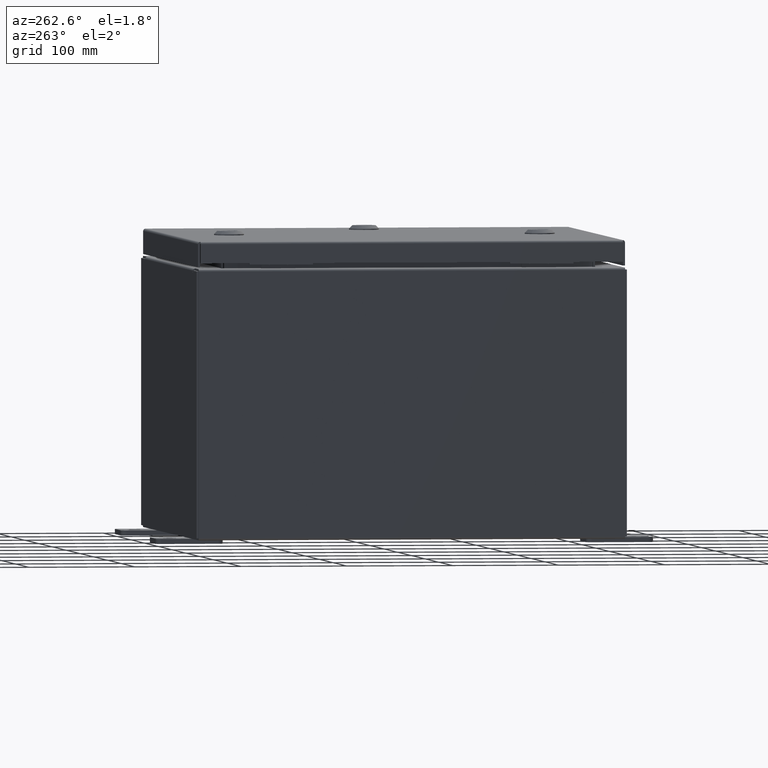
[diagram: clean part render]
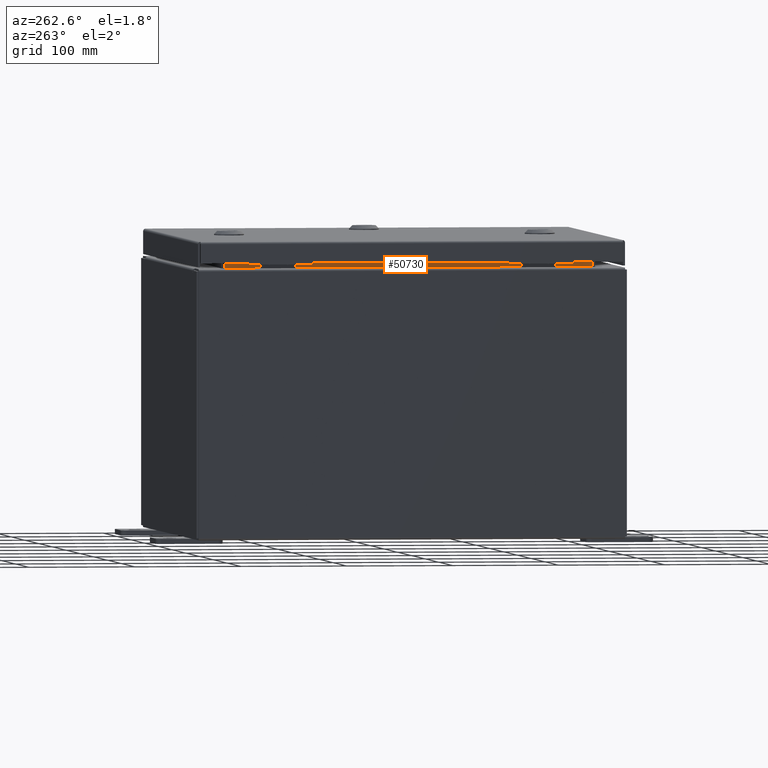
[diagram: same view with one face highlighted and labeled with its STEP entity id]
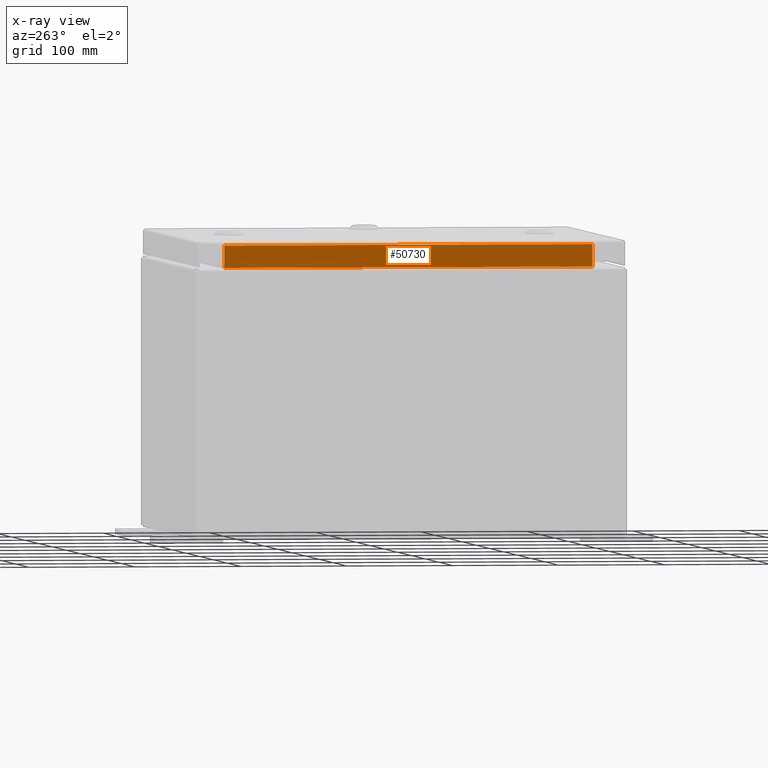
[diagram: x-ray of the same camera — body ghosted, the highlighted face saturated]
A machine part, auxiliary view. The second image highlights one B-rep face of the part: STEP entity #50730.
The next image is the same camera in x-ray: the body ghosted, the highlighted face saturated — about 0% of this face is hidden behind the body in this view.
In plain terms, the highlighted planar face has unit normal (-1, 0, -0).
Its self-contained STEP definition (entity closure, byte-faithful):
#734 = EDGE_CURVE ( 'NONE', #21300, #13346, #41102, .T. ) ;
#2058 = LINE ( 'NONE', #43005, #51892 ) ;
#13067 = VECTOR ( 'NONE', #56035, 39.37007874015748100 ) ;
#13346 = VERTEX_POINT ( 'NONE', #46370 ) ;
#14771 = DIRECTION ( 'NONE',  ( -1.596696544242127400E-016, 1.000000000000000000, 0.0000000000000000000 ) ) ;
#15415 = FACE_OUTER_BOUND ( 'NONE', #33861, .T. ) ;
#15996 = LINE ( 'NONE', #52862, #52917 ) ;
#21300 = VERTEX_POINT ( 'NONE', #23836 ) ;
#22516 = PLANE ( 'NONE',  #30360 ) ;
#23836 = CARTESIAN_POINT ( 'NONE',  ( -6.949700000000039100, 6.843749999999996400, 10.76290000000000700 ) ) ;
#23903 = ORIENTED_EDGE ( 'NONE', *, *, #734, .F. ) ;
#24505 = EDGE_CURVE ( 'NONE', #62483, #35014, #2058, .T. ) ;
#27425 = LINE ( 'NONE', #50984, #13067 ) ;
#27557 = DIRECTION ( 'NONE',  ( -2.361913319930193300E-015, 0.0000000000000000000, 1.000000000000000000 ) ) ;
#28304 = VECTOR ( 'NONE', #49460, 39.37007874015748100 ) ;
#30360 = AXIS2_PLACEMENT_3D ( 'NONE', #46707, #56424, #27557 ) ;
#33861 = EDGE_LOOP ( 'NONE', ( #48784, #23903, #40684, #45762 ) ) ;
#35014 = VERTEX_POINT ( 'NONE', #40075 ) ;
#39770 = CARTESIAN_POINT ( 'NONE',  ( -6.949700000000040800, 6.843749999999997300, 10.76290000000000700 ) ) ;
#40075 = CARTESIAN_POINT ( 'NONE',  ( -6.949700000000036400, 6.843749999999995600, 9.938300000000007000 ) ) ;
#40684 = ORIENTED_EDGE ( 'NONE', *, *, #40977, .F. ) ;
#40977 = EDGE_CURVE ( 'NONE', #35014, #21300, #27425, .T. ) ;
#41102 = LINE ( 'NONE', #39770, #28304 ) ;
#43005 = CARTESIAN_POINT ( 'NONE',  ( -6.949700000000036400, -6.843749999999996400, 9.938300000000007000 ) ) ;
#45762 = ORIENTED_EDGE ( 'NONE', *, *, #24505, .F. ) ;
#46370 = CARTESIAN_POINT ( 'NONE',  ( -6.949700000000040800, -6.843749999999997300, 10.76290000000000700 ) ) ;
#46707 = CARTESIAN_POINT ( 'NONE',  ( -6.949700000000013300, 0.0000000000000000000, -1.641458899951889600E-014 ) ) ;
#48007 = DIRECTION ( 'NONE',  ( 3.542869979895289700E-015, -0.0000000000000000000, -1.000000000000000000 ) ) ;
#48784 = ORIENTED_EDGE ( 'NONE', *, *, #62631, .F. ) ;
#49460 = DIRECTION ( 'NONE',  ( -0.0000000000000000000, -1.000000000000000000, -0.0000000000000000000 ) ) ;
#50730 = ADVANCED_FACE ( 'NONE', ( #15415 ), #22516, .T. ) ;
#50984 = CARTESIAN_POINT ( 'NONE',  ( -6.949700000000039100, 6.843749999999996400, 10.85060000000000700 ) ) ;
#51892 = VECTOR ( 'NONE', #14771, 39.37007874015748100 ) ;
#52242 = CARTESIAN_POINT ( 'NONE',  ( -6.949700000000036400, -6.843749999999996400, 9.938300000000007000 ) ) ;
#52862 = CARTESIAN_POINT ( 'NONE',  ( -6.949700000000036400, -6.843749999999996400, 9.925300000000007100 ) ) ;
#52917 = VECTOR ( 'NONE', #48007, 39.37007874015748100 ) ;
#56035 = DIRECTION ( 'NONE',  ( -2.361913319930193300E-015, -0.0000000000000000000, 1.000000000000000000 ) ) ;
#56424 = DIRECTION ( 'NONE',  ( -1.000000000000000000, 0.0000000000000000000, -2.361913319930193300E-015 ) ) ;
#62483 = VERTEX_POINT ( 'NONE', #52242 ) ;
#62631 = EDGE_CURVE ( 'NONE', #13346, #62483, #15996, .T. ) ;